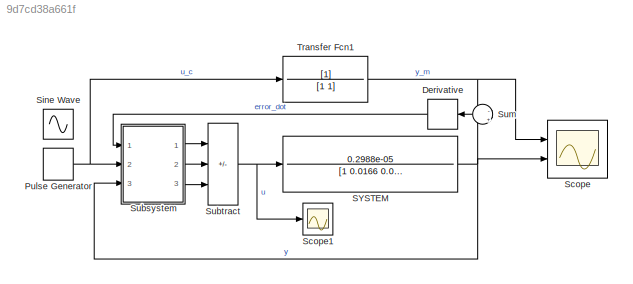
MODEL slx_9d7cd38a661f
KIND model
CONFIG AbsTol = auto
CONFIG EnableMultiTasking = off
CONFIG FixedStep = auto
CONFIG MaxStep = 0.01
CONFIG MinStep = 0.001
CONFIG RelTol = 1e-3
CONFIG SampleTimeConstraint = Unconstrained
CONFIG SolverName = VariableStepAuto
CONFIG StartTime = 0.0
CONFIG StopTime = 2000
WORKSPACE source: mxarray member
WORKSPACE a = -1
BLOCK [Derivative] Derivative
  NameLocation = top
BLOCK [DiscretePulseGenerator] Pulse Generator
  Amplitude = 50
  Period = 200
  Ports = [0, 1]
  PulseType = Time based
  PulseWidth = 50
  VectorParams1D = off
BLOCK [TransferFcn] SYSTEM
  Denominator = [1 0.0166 0.00001]
  Numerator = 0.2988e-05
BLOCK [Scope] Scope
  Floating = off
  NumInputPorts = 2
  Ports = [2]
  ScopeSpecificationString = Simulink.scopes.TimeScopeBlockCfg('CurrentConfiguration', extmgr.ConfigurationSet(extmgr.Configuration('Core','General UI',true),extmgr.Configuration('Core','Source UI',true),extmgr.Configuration('Sources','WiredSimulink',true),extmgr.Configuration('Visuals','Time Domain',true,'SerializedDisplays',{struct('MinYLimReal','-6.25','MaxYLimReal','56.25','YLabelReal','','MinYLimMag','0.00000','MaxYLimMa...<+1384ch>
BLOCK [Scope] Scope1
  Floating = off
  NumInputPorts = 1
  Ports = [1]
  ScopeSpecificationString = Simulink.scopes.TimeScopeBlockCfg('CurrentConfiguration', extmgr.ConfigurationSet(extmgr.Configuration('Core','General UI',true),extmgr.Configuration('Core','Source UI',true),extmgr.Configuration('Sources','WiredSimulink',true,'DataLoggingVariableName','ScopeData1'),extmgr.Configuration('Visuals','Time Domain',true,'SerializedDisplays',{struct('MinYLimReal','-299617.80443','MaxYLimReal','278203.56...<+1397ch>
BLOCK [Sin] Sine Wave
  Amplitude = 10
  Frequency = 0.01
  Ports = [0, 1]
  SampleTime = 0
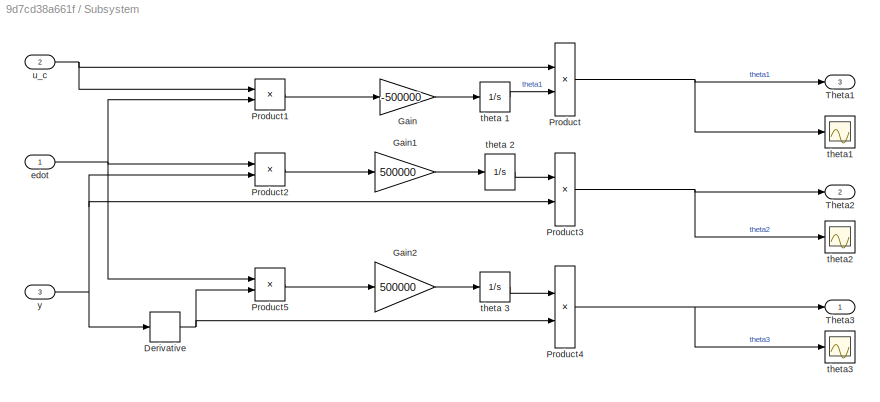
BLOCK [SubSystem] Subsystem
  Ports = [3, 3]
  RequestExecContextInheritance = off
BLOCK [Derivative] Subsystem/Derivative
  NameLocation = top
BLOCK [Gain] Subsystem/Gain
  Gain = -500000
  NameLocation = top
BLOCK [Gain] Subsystem/Gain1
  Gain = 500000
  NameLocation = top
BLOCK [Gain] Subsystem/Gain2
  Gain = 500000
  NameLocation = top
BLOCK [Product] Subsystem/Product
  Ports = [2, 1]
BLOCK [Product] Subsystem/Product1
  NameLocation = top
  Ports = [2, 1]
BLOCK [Product] Subsystem/Product2
  NameLocation = top
  Ports = [2, 1]
BLOCK [Product] Subsystem/Product3
  NameLocation = top
  Ports = [2, 1]
BLOCK [Product] Subsystem/Product4
  NameLocation = top
  Ports = [2, 1]
BLOCK [Product] Subsystem/Product5
  NameLocation = top
  Ports = [2, 1]
BLOCK [Outport] Subsystem/Theta1
  Port = 3
BLOCK [Outport] Subsystem/Theta2
  Port = 2
BLOCK [Outport] Subsystem/Theta3
BLOCK [Inport] Subsystem/edot
BLOCK [Integrator] Subsystem/theta 1
  NameLocation = top
  Ports = [1, 1]
BLOCK [Integrator] Subsystem/theta 2
  NameLocation = top
  Ports = [1, 1]
BLOCK [Integrator] Subsystem/theta 3
  NameLocation = top
  Ports = [1, 1]
BLOCK [Scope] Subsystem/theta1
  Floating = off
  NumInputPorts = 1
  Ports = [1]
  ScopeSpecificationString = Simulink.scopes.TimeScopeBlockCfg('CurrentConfiguration', extmgr.ConfigurationSet(extmgr.Configuration('Core','General UI',true),extmgr.Configuration('Core','Source UI',true),extmgr.Configuration('Sources','WiredSimulink',true,'DataLoggingVariableName','ScopeData2'),extmgr.Configuration('Visuals','Time Domain',true,'SerializedDisplays',{struct('MinYLimReal','-124045.69004','MaxYLimReal','277450.45...<+1460ch>
BLOCK [Scope] Subsystem/theta2
  Floating = off
  NumInputPorts = 1
  Ports = [1]
  ScopeSpecificationString = Simulink.scopes.TimeScopeBlockCfg('CurrentConfiguration', extmgr.ConfigurationSet(extmgr.Configuration('Core','General UI',true),extmgr.Configuration('Core','Source UI',true),extmgr.Configuration('Sources','WiredSimulink',true,'DataLoggingVariableName','ScopeData4'),extmgr.Configuration('Visuals','Time Domain',true,'SerializedDisplays',{struct('MinYLimReal','-53452.32499','MaxYLimReal','250951.313...<+1451ch>
BLOCK [Scope] Subsystem/theta3
  Floating = off
  NumInputPorts = 1
  Ports = [1]
  ScopeSpecificationString = Simulink.scopes.TimeScopeBlockCfg('CurrentConfiguration', extmgr.ConfigurationSet(extmgr.Configuration('Core','General UI',true),extmgr.Configuration('Core','Source UI',true),extmgr.Configuration('Sources','WiredSimulink',true,'DataLoggingVariableName','ScopeData5'),extmgr.Configuration('Visuals','Time Domain',true,'SerializedDisplays',{struct('MinYLimReal','-388321.94857','MaxYLimReal','462713.20...<+1455ch>
BLOCK [Inport] Subsystem/u_c
  Port = 2
BLOCK [Inport] Subsystem/y
  Port = 3
BLOCK [Sum] Subtract
  IconShape = rectangular
  Inputs = --+
  Ports = [3, 1]
BLOCK [Sum] Sum
  Inputs = -|+
  Ports = [2, 1]
BLOCK [TransferFcn] Transfer Fcn1
LINE Derivative:1 -> Subsystem:1
NET Pulse Generator:1 -> Subsystem:2, Transfer Fcn1:1
NET SYSTEM:1 -> Scope:2, Subsystem:3, Sum:2
NET Subsystem/Derivative:1 -> Subsystem/Product4:2, Subsystem/Product5:2
LINE Subsystem/Gain1:1 -> Subsystem/theta 2:1
LINE Subsystem/Gain2:1 -> Subsystem/theta 3:1
LINE Subsystem/Gain:1 -> Subsystem/theta 1:1
LINE Subsystem/Product1:1 -> Subsystem/Gain:1
LINE Subsystem/Product2:1 -> Subsystem/Gain1:1
NET Subsystem/Product3:1 -> Subsystem/Theta2:1, Subsystem/theta2:1
NET Subsystem/Product4:1 -> Subsystem/Theta3:1, Subsystem/theta3:1
LINE Subsystem/Product5:1 -> Subsystem/Gain2:1
NET Subsystem/Product:1 -> Subsystem/Theta1:1, Subsystem/theta1:1
NET Subsystem/edot:1 -> Subsystem/Product1:2, Subsystem/Product2:1, Subsystem/Product5:1
LINE Subsystem/theta 1:1 -> Subsystem/Product:2
LINE Subsystem/theta 2:1 -> Subsystem/Product3:1
LINE Subsystem/theta 3:1 -> Subsystem/Product4:1
NET Subsystem/u_c:1 -> Subsystem/Product1:1, Subsystem/Product:1
NET Subsystem/y:1 -> Subsystem/Derivative:1, Subsystem/Product2:2, Subsystem/Product3:2
LINE Subsystem:1 -> Subtract:1
LINE Subsystem:2 -> Subtract:2
LINE Subsystem:3 -> Subtract:3
NET Subtract:1 -> SYSTEM:1, Scope1:1
LINE Sum:1 -> Derivative:1
NET Transfer Fcn1:1 -> Scope:1, Sum:1
note: NET lines group one-source signal fan-out (src -> all destinations, sorted); 1:1 wires keep LINE
